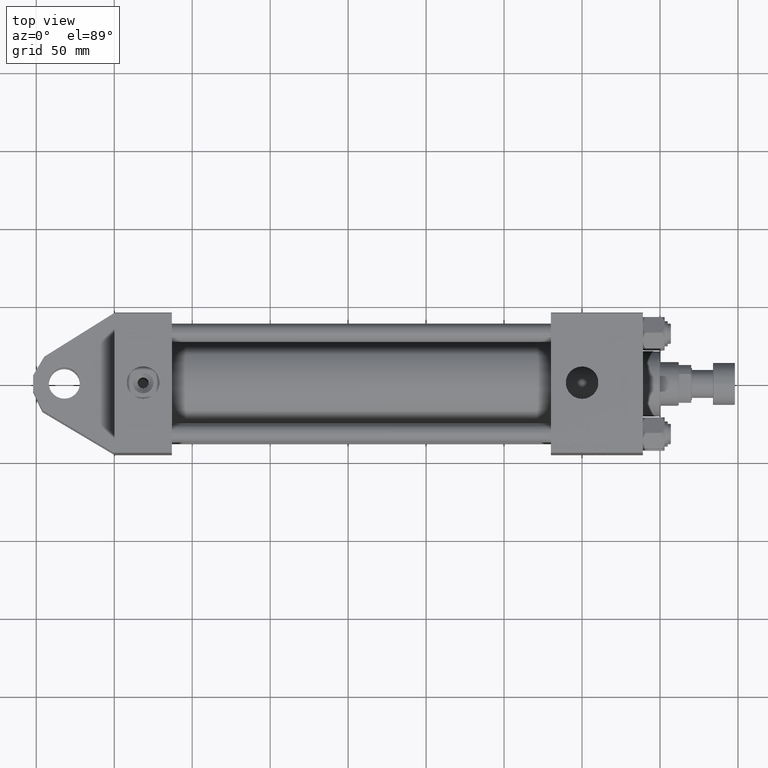
[diagram: clean part render]
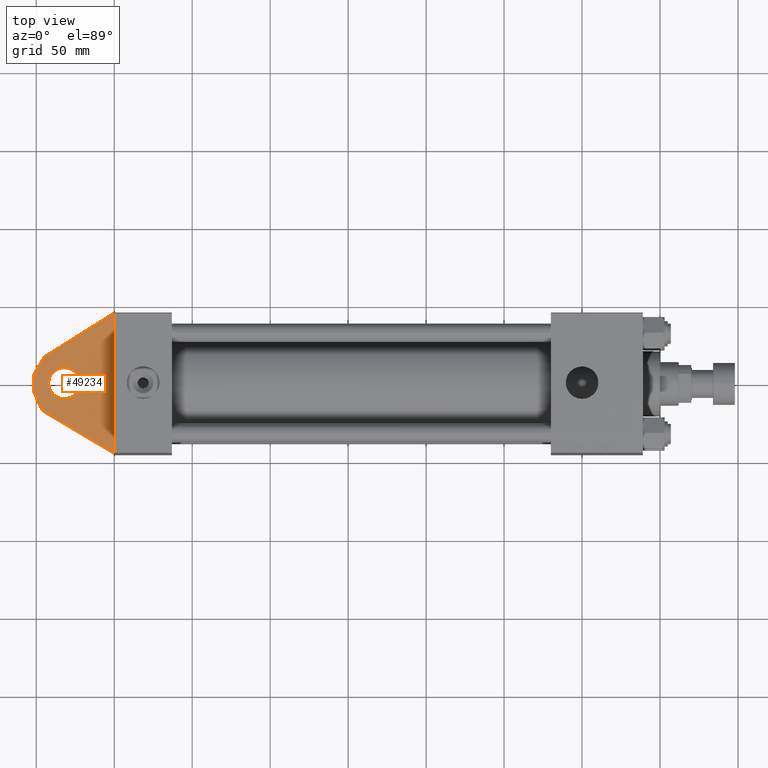
[diagram: same view with one face highlighted and labeled with its STEP entity id]
A machine part, top view. The second image highlights one B-rep face of the part: STEP entity #49234.
In plain terms, the highlighted planar face has unit normal (0, 0, 1).
Its self-contained STEP definition (entity closure, byte-faithful):
#2121 = CARTESIAN_POINT ( 'NONE',  ( -52.00000000000000711, -30.00000000000000000, -5.000000000000000000 ) ) ;
#2900 = DIRECTION ( 'NONE',  ( -0.4226182617406930020, 0.000000000000000000, 0.9063077870366529343 ) ) ;
#3779 = CARTESIAN_POINT ( 'NONE',  ( -46.14251089227400371, -30.00000000000000000, -17.56142592832800631 ) ) ;
#3890 = VECTOR ( 'NONE', #2900, 1000.000000000000227 ) ;
#4326 = ORIENTED_EDGE ( 'NONE', *, *, #50854, .T. ) ;
#4476 = CARTESIAN_POINT ( 'NONE',  ( -32.00000000000000000, -30.00000000000000000, 10.00000000000000000 ) ) ;
#5701 = VERTEX_POINT ( 'NONE', #48361 ) ;
#5951 = VECTOR ( 'NONE', #9791, 1000.000000000000000 ) ;
#7112 = DIRECTION ( 'NONE',  ( 0.000000000000000000, 0.000000000000000000, 1.000000000000000000 ) ) ;
#8080 = VERTEX_POINT ( 'NONE', #46958 ) ;
#8119 = AXIS2_PLACEMENT_3D ( 'NONE', #45087, #17346, #37707 ) ;
#8438 = ORIENTED_EDGE ( 'NONE', *, *, #22124, .F. ) ;
#9035 = CIRCLE ( 'NONE', #14937, 10.00000000000000000 ) ;
#9592 = VERTEX_POINT ( 'NONE', #13823 ) ;
#9791 = DIRECTION ( 'NONE',  ( 0.000000000000000000, 0.000000000000000000, 1.000000000000000000 ) ) ;
#11354 = CARTESIAN_POINT ( 'NONE',  ( -52.00000000000000711, -30.00000000000000000, -5.000000000000000000 ) ) ;
#11820 = CARTESIAN_POINT ( 'NONE',  ( 0.000000000000000000, -30.00000000000000000, 45.00000000000000000 ) ) ;
#12663 = EDGE_LOOP ( 'NONE', ( #49556, #4326 ) ) ;
#13823 = CARTESIAN_POINT ( 'NONE',  ( 0.000000000000000000, -29.99999999999997158, 45.00000000000000000 ) ) ;
#14937 = AXIS2_PLACEMENT_3D ( 'NONE', #19694, #15718, #35817 ) ;
#15274 = CARTESIAN_POINT ( 'NONE',  ( -52.00000000000000711, -30.00000000000000000, 5.000000000000000000 ) ) ;
#15718 = DIRECTION ( 'NONE',  ( -0.000000000000000000, 1.000000000000000000, -0.000000000000000000 ) ) ;
#16560 = CARTESIAN_POINT ( 'NONE',  ( -44.91602078046192048, -30.00000000000000000, 16.91288539427591431 ) ) ;
#16933 = VERTEX_POINT ( 'NONE', #4476 ) ;
#17346 = DIRECTION ( 'NONE',  ( 0.000000000000000000, -1.000000000000000000, 0.000000000000000000 ) ) ;
#18033 = VECTOR ( 'NONE', #50941, 999.9999999999998863 ) ;
#18199 = EDGE_CURVE ( 'NONE', #40510, #49049, #30637, .T. ) ;
#19694 = CARTESIAN_POINT ( 'NONE',  ( -32.00000000000000000, -30.00000000000000000, 0.000000000000000000 ) ) ;
#20711 = DIRECTION ( 'NONE',  ( -0.8595155407125480984, 0.000000000000000000, 0.5111096117992853793 ) ) ;
#21220 = ORIENTED_EDGE ( 'NONE', *, *, #49967, .F. ) ;
#21842 = FACE_OUTER_BOUND ( 'NONE', #44096, .T. ) ;
#22124 = EDGE_CURVE ( 'NONE', #8080, #36904, #36582, .T. ) ;
#22846 = LINE ( 'NONE', #46604, #40647 ) ;
#23793 = LINE ( 'NONE', #11354, #3890 ) ;
#25304 = DIRECTION ( 'NONE',  ( 0.000000000000000000, 0.000000000000000000, -1.000000000000000000 ) ) ;
#25978 = ORIENTED_EDGE ( 'NONE', *, *, #18199, .F. ) ;
#28997 = FACE_BOUND ( 'NONE', #12663, .T. ) ;
#30637 = LINE ( 'NONE', #15274, #18033 ) ;
#31270 = AXIS2_PLACEMENT_3D ( 'NONE', #35938, #31975, #7112 ) ;
#31639 = VECTOR ( 'NONE', #20711, 999.9999999999998863 ) ;
#31975 = DIRECTION ( 'NONE',  ( -0.000000000000000000, 1.000000000000000000, -0.000000000000000000 ) ) ;
#35817 = DIRECTION ( 'NONE',  ( 0.000000000000000000, 0.000000000000000000, 1.000000000000000000 ) ) ;
#35938 = CARTESIAN_POINT ( 'NONE',  ( -32.00000000000000000, -30.00000000000000000, 0.000000000000000000 ) ) ;
#36582 = LINE ( 'NONE', #3779, #31639 ) ;
#36904 = VERTEX_POINT ( 'NONE', #42928 ) ;
#37707 = DIRECTION ( 'NONE',  ( 0.000000000000000000, 0.000000000000000000, 1.000000000000000000 ) ) ;
#38441 = DIRECTION ( 'NONE',  ( 0.8478744008358545248, 0.000000000000000000, 0.5301971335335947666 ) ) ;
#38610 = VECTOR ( 'NONE', #25304, 1000.000000000000000 ) ;
#38887 = CARTESIAN_POINT ( 'NONE',  ( -52.00000000000000711, -30.00000000000000000, 5.000000000000000000 ) ) ;
#39158 = ORIENTED_EDGE ( 'NONE', *, *, #42167, .F. ) ;
#39759 = EDGE_CURVE ( 'NONE', #16933, #45446, #43927, .T. ) ;
#40329 = EDGE_CURVE ( 'NONE', #5701, #40510, #42321, .T. ) ;
#40510 = VERTEX_POINT ( 'NONE', #38887 ) ;
#40647 = VECTOR ( 'NONE', #38441, 1000.000000000000114 ) ;
#42167 = EDGE_CURVE ( 'NONE', #49049, #9592, #22846, .T. ) ;
#42189 = PLANE ( 'NONE',  #8119 ) ;
#42321 = LINE ( 'NONE', #2121, #5951 ) ;
#42928 = CARTESIAN_POINT ( 'NONE',  ( -46.14251089227400371, -30.00000000000000000, -17.56142592832800631 ) ) ;
#43745 = ORIENTED_EDGE ( 'NONE', *, *, #40329, .F. ) ;
#43927 = CIRCLE ( 'NONE', #31270, 10.00000000000000000 ) ;
#44096 = EDGE_LOOP ( 'NONE', ( #25978, #43745, #49000, #8438, #21220, #39158 ) ) ;
#45087 = CARTESIAN_POINT ( 'NONE',  ( 0.000000000000000000, -30.00000000000000000, 0.000000000000000000 ) ) ;
#45446 = VERTEX_POINT ( 'NONE', #46598 ) ;
#46598 = CARTESIAN_POINT ( 'NONE',  ( -32.00000000000000000, -30.00000000000000000, -10.00000000000000000 ) ) ;
#46604 = CARTESIAN_POINT ( 'NONE',  ( -44.91602078046192048, -30.00000000000000000, 16.91288539427591431 ) ) ;
#46958 = CARTESIAN_POINT ( 'NONE',  ( 0.000000000000000000, -30.00000000000000000, -45.00000000000000000 ) ) ;
#48008 = LINE ( 'NONE', #11820, #38610 ) ;
#48361 = CARTESIAN_POINT ( 'NONE',  ( -52.00000000000000711, -30.00000000000000000, -5.000000000000000000 ) ) ;
#49000 = ORIENTED_EDGE ( 'NONE', *, *, #49557, .F. ) ;
#49049 = VERTEX_POINT ( 'NONE', #16560 ) ;
#49234 = ADVANCED_FACE ( 'NONE', ( #28997, #21842 ), #42189, .T. ) ;
#49556 = ORIENTED_EDGE ( 'NONE', *, *, #39759, .T. ) ;
#49557 = EDGE_CURVE ( 'NONE', #36904, #5701, #23793, .T. ) ;
#49967 = EDGE_CURVE ( 'NONE', #9592, #8080, #48008, .T. ) ;
#50854 = EDGE_CURVE ( 'NONE', #45446, #16933, #9035, .T. ) ;
#50941 = DIRECTION ( 'NONE',  ( 0.5111096117992851573, 0.000000000000000000, 0.8595155407125482094 ) ) ;